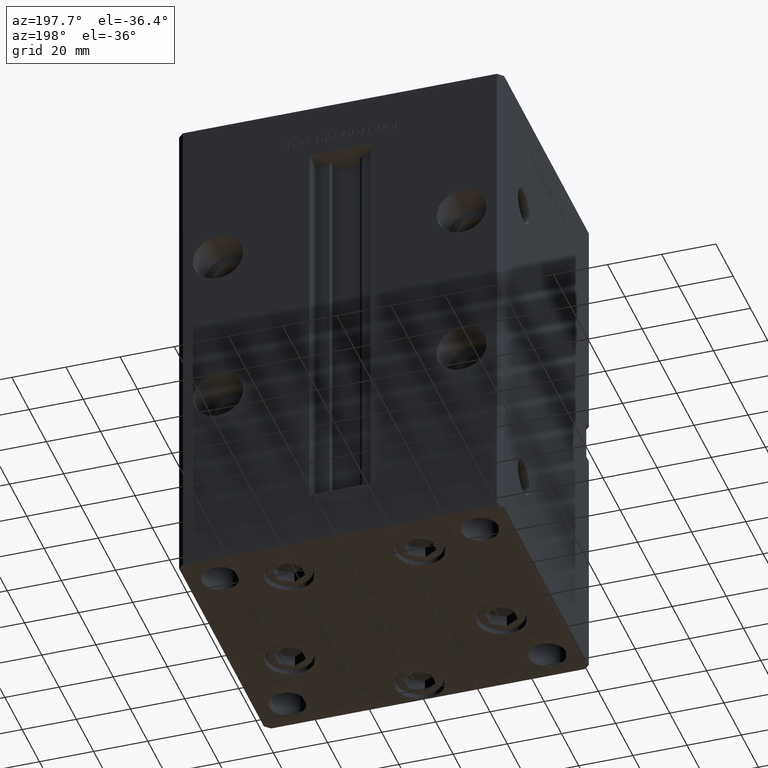
[diagram: clean part render]
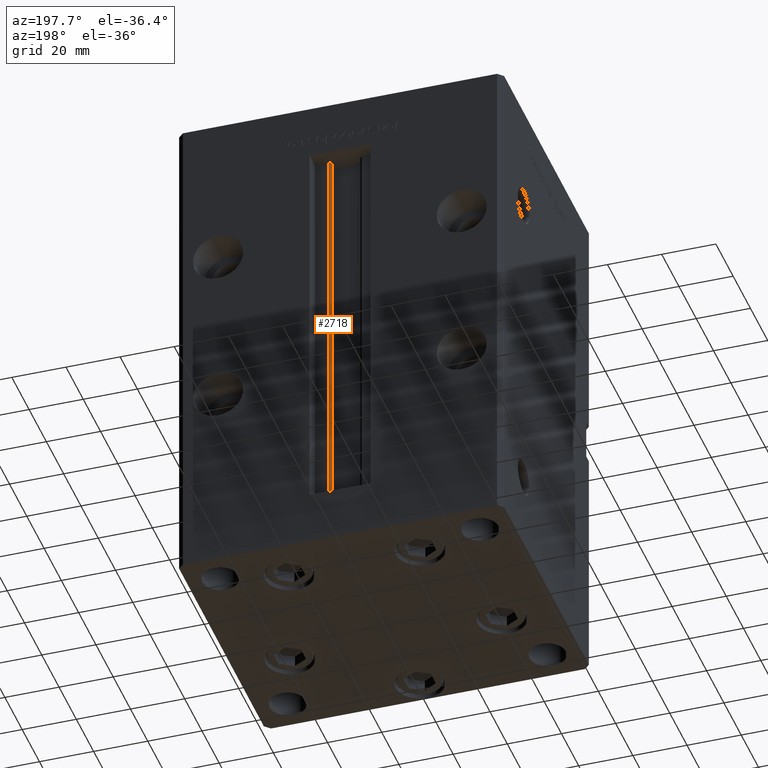
[diagram: same view with one face highlighted and labeled with its STEP entity id]
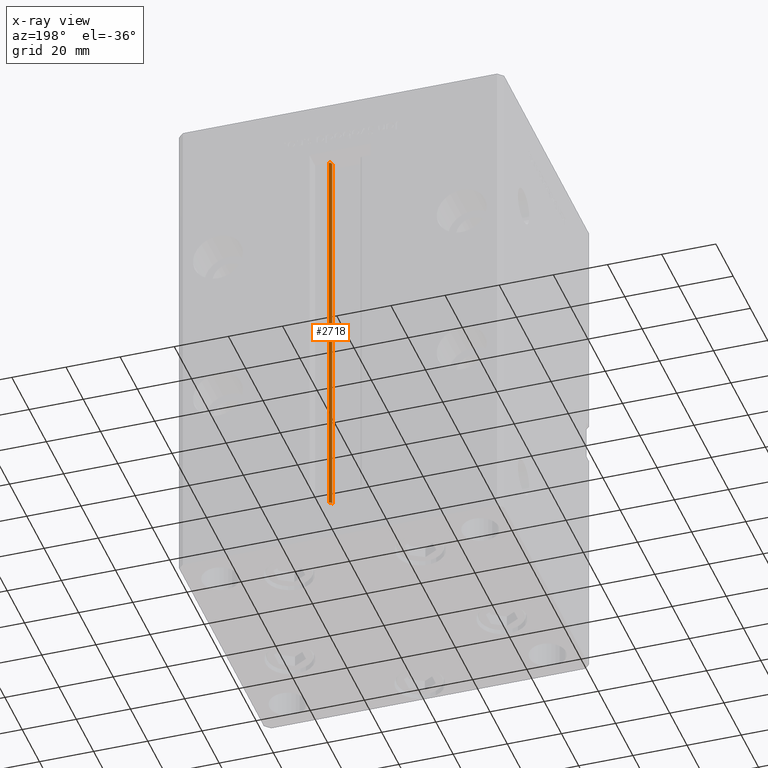
[diagram: x-ray of the same camera — body ghosted, the highlighted face saturated]
A machine part, auxiliary view. The second image highlights one B-rep face of the part: STEP entity #2718.
The next image is the same camera in x-ray: the body ghosted, the highlighted face saturated — about 0% of this face is hidden behind the body in this view.
In plain terms, the highlighted cylindrical surface (edge-blend (fillet) strip) has radius 0.9333 mm, axis along (0, 0, 1).
Its self-contained STEP definition (entity closure, byte-faithful):
#2718 = ADVANCED_FACE ( 'NONE', ( #7808 ), #49409, .T. ) ;
#4455 = AXIS2_PLACEMENT_3D ( 'NONE', #29006, #48604, #32233 ) ;
#5138 = VERTEX_POINT ( 'NONE', #14622 ) ;
#5261 = EDGE_CURVE ( 'NONE', #22818, #43524, #5437, .T. ) ;
#5437 = LINE ( 'NONE', #25586, #38775 ) ;
#7269 = AXIS2_PLACEMENT_3D ( 'NONE', #18607, #18076, #43561 ) ;
#7808 = FACE_OUTER_BOUND ( 'NONE', #44740, .T. ) ;
#12332 = CARTESIAN_POINT ( 'NONE',  ( 6.183333333333997928, 44.50000000000000711, 0.000000000000000000 ) ) ;
#14622 = CARTESIAN_POINT ( 'NONE',  ( 5.375042956467945388, 43.09999999999899956, 0.000000000000000000 ) ) ;
#15177 = CARTESIAN_POINT ( 'NONE',  ( 6.183333333333997928, 44.50000000000000711, 148.5000000000000000 ) ) ;
#16162 = ORIENTED_EDGE ( 'NONE', *, *, #30168, .F. ) ;
#18076 = DIRECTION ( 'NONE',  ( 0.000000000000000000, 0.000000000000000000, -1.000000000000000000 ) ) ;
#18607 = CARTESIAN_POINT ( 'NONE',  ( 6.183333333333997928, 43.56666666666600207, 148.5000000000000000 ) ) ;
#20599 = CARTESIAN_POINT ( 'NONE',  ( 6.183333333333997928, 43.56666666666600207, 0.000000000000000000 ) ) ;
#21803 = DIRECTION ( 'NONE',  ( -0.000000000000000000, -0.000000000000000000, 1.000000000000000000 ) ) ;
#22818 = VERTEX_POINT ( 'NONE', #12332 ) ;
#23531 = CIRCLE ( 'NONE', #7269, 0.9333333333340008142 ) ;
#25586 = CARTESIAN_POINT ( 'NONE',  ( 6.183333333333997928, 44.50000000000000711, 0.000000000000000000 ) ) ;
#27437 = CARTESIAN_POINT ( 'NONE',  ( 5.375042956467945388, 43.09999999999899956, 0.000000000000000000 ) ) ;
#29006 = CARTESIAN_POINT ( 'NONE',  ( 6.183333333333997928, 43.56666666666600207, 0.000000000000000000 ) ) ;
#30082 = AXIS2_PLACEMENT_3D ( 'NONE', #20599, #44227, #43961 ) ;
#30168 = EDGE_CURVE ( 'NONE', #5138, #22818, #39552, .T. ) ;
#32233 = DIRECTION ( 'NONE',  ( 1.000000000000000000, 0.000000000000000000, 0.000000000000000000 ) ) ;
#35634 = ORIENTED_EDGE ( 'NONE', *, *, #5261, .F. ) ;
#38775 = VECTOR ( 'NONE', #21803, 1000.000000000000000 ) ;
#39552 = CIRCLE ( 'NONE', #30082, 0.9333333333340008142 ) ;
#40042 = ORIENTED_EDGE ( 'NONE', *, *, #42262, .T. ) ;
#40311 = ORIENTED_EDGE ( 'NONE', *, *, #44569, .T. ) ;
#42262 = EDGE_CURVE ( 'NONE', #5138, #48499, #51857, .T. ) ;
#42850 = CARTESIAN_POINT ( 'NONE',  ( 5.375042956467942723, 43.09999999999899956, 148.5000000000000000 ) ) ;
#43524 = VERTEX_POINT ( 'NONE', #15177 ) ;
#43561 = DIRECTION ( 'NONE',  ( 1.000000000000000000, 0.000000000000000000, 0.000000000000000000 ) ) ;
#43961 = DIRECTION ( 'NONE',  ( 1.000000000000000000, 0.000000000000000000, 0.000000000000000000 ) ) ;
#44227 = DIRECTION ( 'NONE',  ( -0.000000000000000000, -0.000000000000000000, -1.000000000000000000 ) ) ;
#44569 = EDGE_CURVE ( 'NONE', #48499, #43524, #23531, .T. ) ;
#44740 = EDGE_LOOP ( 'NONE', ( #35634, #16162, #40042, #40311 ) ) ;
#48499 = VERTEX_POINT ( 'NONE', #42850 ) ;
#48604 = DIRECTION ( 'NONE',  ( -0.000000000000000000, -0.000000000000000000, 1.000000000000000000 ) ) ;
#49409 = CYLINDRICAL_SURFACE ( 'NONE', #4455, 0.9333333333340008142 ) ;
#49436 = DIRECTION ( 'NONE',  ( -0.000000000000000000, -0.000000000000000000, 1.000000000000000000 ) ) ;
#50032 = VECTOR ( 'NONE', #49436, 1000.000000000000000 ) ;
#51857 = LINE ( 'NONE', #27437, #50032 ) ;